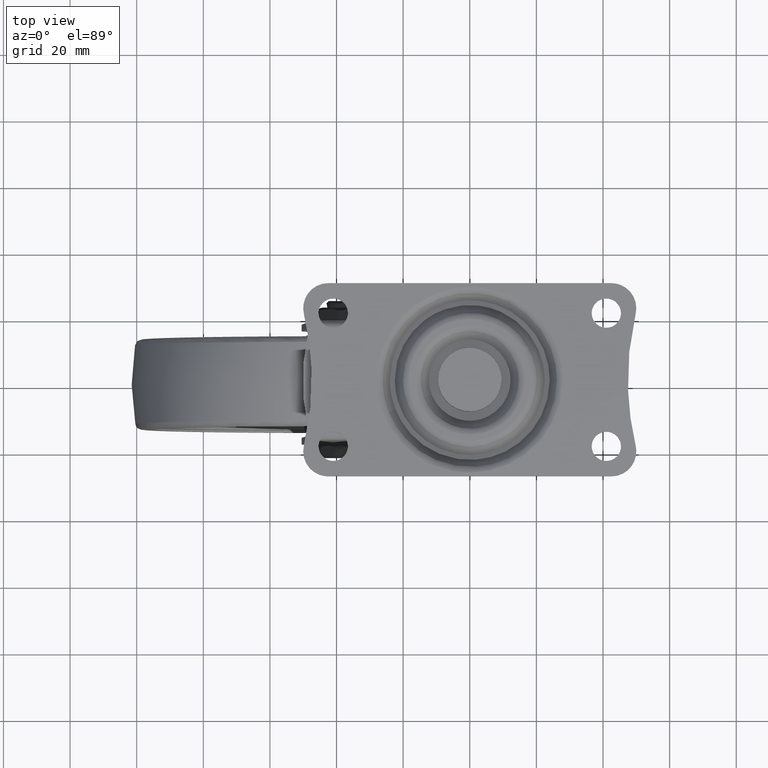
[diagram: clean part render]
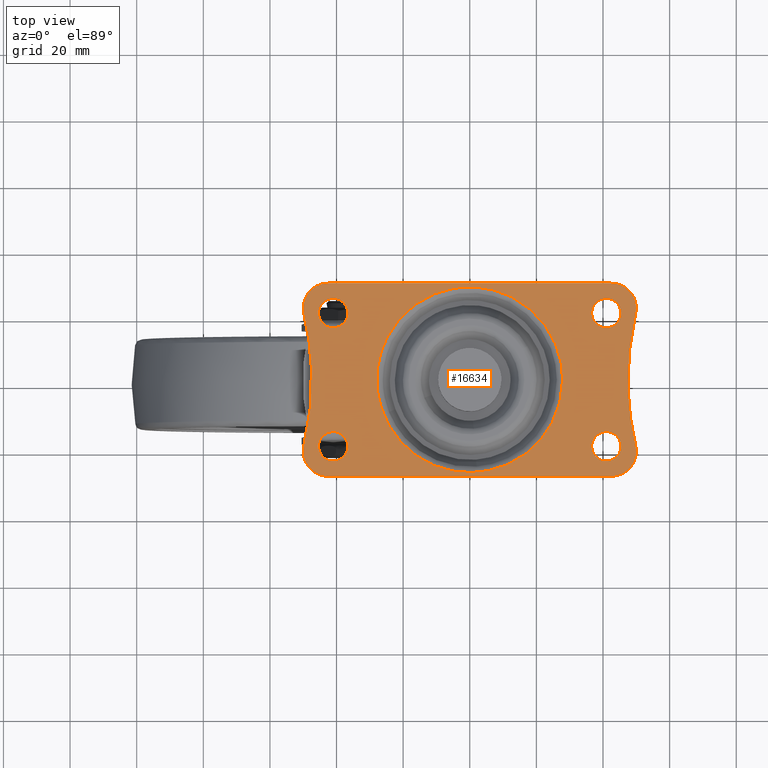
[diagram: same view with one face highlighted and labeled with its STEP entity id]
A machine part, top view. The second image highlights one B-rep face of the part: STEP entity #16634.
In plain terms, the highlighted face is a freeform B-spline surface patch.
Its self-contained STEP definition (entity closure, byte-faithful):
#10453=CARTESIAN_POINT('',(-41.519350644733478,15.630757984751259,2.0));
#10454=VERTEX_POINT('',#10453);
#10455=CARTESIAN_POINT('',(-36.599999900000000,20.0,2.0));
#10456=VERTEX_POINT('',#10455);
#10457=CARTESIAN_POINT('',(-41.519350644733485,15.630757984751254,2.000000000000000));
#10458=CARTESIAN_POINT('',(-41.260586132835790,15.599999900000000,2.0));
#10459=CARTESIAN_POINT('',(-41.0,15.599999900000000,2.0));
#10460=CARTESIAN_POINT('',(-36.599999900000000,15.599999900000011,2.0));
#10461=CARTESIAN_POINT('',(-36.599999900000000,20.0,2.0));
#10469=(BOUNDED_CURVE()B_SPLINE_CURVE(2,(#10457,#10458,#10459,#10460,#10461),.UNSPECIFIED.,.F.,.U.)B_SPLINE_CURVE_WITH_KNOTS((3,2,3),(0.229562473481581,0.250000000000000,0.500000000000000),.UNSPECIFIED.)CURVE()GEOMETRIC_REPRESENTATION_ITEM()RATIONAL_B_SPLINE_CURVE((0.956026754121121,0.976055948293740,1.0,0.707106781186547,1.0))REPRESENTATION_ITEM(''));
#10470=EDGE_CURVE('',#10454,#10456,#10469,.T.);
#10472=CARTESIAN_POINT('',(-40.731386419622680,24.391793212850182,2.0));
#10473=VERTEX_POINT('',#10472);
#10474=CARTESIAN_POINT('',(-36.599999900000000,20.0,2.0));
#10475=CARTESIAN_POINT('',(-36.599999900000007,24.139106787853052,1.999999999999999));
#10476=CARTESIAN_POINT('',(-40.731386419622680,24.391793212850168,2.000000000000000));
#10484=(BOUNDED_CURVE()B_SPLINE_CURVE(2,(#10474,#10475,#10476),.UNSPECIFIED.,.F.,.U.)B_SPLINE_CURVE_WITH_KNOTS((3,3),(0.500000000000000,0.739332962216894),.UNSPECIFIED.)CURVE()GEOMETRIC_REPRESENTATION_ITEM()RATIONAL_B_SPLINE_CURVE((1.0,0.719603993312542,0.976072041619462))REPRESENTATION_ITEM(''));
#10485=EDGE_CURVE('',#10456,#10473,#10484,.T.);
#10552=CARTESIAN_POINT('',(-45.400000100000007,20.0,2.0));
#10553=VERTEX_POINT('',#10552);
#10554=CARTESIAN_POINT('',(-45.400000100000007,20.0,2.0));
#10555=CARTESIAN_POINT('',(-45.400000100000000,16.092031997789739,2.000000000000000));
#10556=CARTESIAN_POINT('',(-41.519350644733478,15.630757984751256,2.0));
#10564=(BOUNDED_CURVE()B_SPLINE_CURVE(2,(#10554,#10555,#10556),.UNSPECIFIED.,.F.,.U.)B_SPLINE_CURVE_WITH_KNOTS((3,3),(0.0,0.229562473481581),.UNSPECIFIED.)CURVE()GEOMETRIC_REPRESENTATION_ITEM()RATIONAL_B_SPLINE_CURVE((1.0,0.731050832892808,0.956026754121120))REPRESENTATION_ITEM(''));
#10565=EDGE_CURVE('',#10553,#10454,#10564,.T.);
#10599=CARTESIAN_POINT('',(-40.731386419622673,24.391793212850175,2.000000000000000));
#10600=CARTESIAN_POINT('',(-40.865567838110948,24.400000099999996,2.000000000000000));
#10601=CARTESIAN_POINT('',(-41.0,24.400000100000000,2.0));
#10602=CARTESIAN_POINT('',(-45.400000100000014,24.400000100000007,2.0));
#10603=CARTESIAN_POINT('',(-45.400000100000007,20.0,2.0));
#10611=(BOUNDED_CURVE()B_SPLINE_CURVE(2,(#10599,#10600,#10601,#10602,#10603),.UNSPECIFIED.,.F.,.U.)B_SPLINE_CURVE_WITH_KNOTS((3,2,3),(0.739332962216895,0.750000000000000,1.0),.UNSPECIFIED.)CURVE()GEOMETRIC_REPRESENTATION_ITEM()RATIONAL_B_SPLINE_CURVE((0.976072041619464,0.987502787874006,1.0,0.707106781186547,1.0))REPRESENTATION_ITEM(''));
#10612=EDGE_CURVE('',#10473,#10553,#10611,.T.);
#10639=CARTESIAN_POINT('',(-41.519350644733478,-24.369242015248741,2.0));
#10640=VERTEX_POINT('',#10639);
#10641=CARTESIAN_POINT('',(-36.599999900000000,-20.0,2.0));
#10642=VERTEX_POINT('',#10641);
#10643=CARTESIAN_POINT('',(-41.519350644733485,-24.369242015248748,2.000000000000000));
#10644=CARTESIAN_POINT('',(-41.260586132835790,-24.400000100000000,2.0));
#10645=CARTESIAN_POINT('',(-41.0,-24.400000100000000,2.0));
#10646=CARTESIAN_POINT('',(-36.599999900000000,-24.400000100000007,2.0));
#10647=CARTESIAN_POINT('',(-36.599999900000000,-20.0,2.0));
#10655=(BOUNDED_CURVE()B_SPLINE_CURVE(2,(#10643,#10644,#10645,#10646,#10647),.UNSPECIFIED.,.F.,.U.)B_SPLINE_CURVE_WITH_KNOTS((3,2,3),(0.229562473481581,0.250000000000000,0.500000000000000),.UNSPECIFIED.)CURVE()GEOMETRIC_REPRESENTATION_ITEM()RATIONAL_B_SPLINE_CURVE((0.956026754121121,0.976055948293740,1.0,0.707106781186547,1.0))REPRESENTATION_ITEM(''));
#10656=EDGE_CURVE('',#10640,#10642,#10655,.T.);
#10658=CARTESIAN_POINT('',(-40.731386419622680,-15.608206787149820,2.0));
#10659=VERTEX_POINT('',#10658);
#10660=CARTESIAN_POINT('',(-36.599999900000000,-20.0,2.0));
#10661=CARTESIAN_POINT('',(-36.599999900000007,-15.860893212146964,1.999999999999999));
#10662=CARTESIAN_POINT('',(-40.731386419622680,-15.608206787149825,2.000000000000000));
#10670=(BOUNDED_CURVE()B_SPLINE_CURVE(2,(#10660,#10661,#10662),.UNSPECIFIED.,.F.,.U.)B_SPLINE_CURVE_WITH_KNOTS((3,3),(0.500000000000000,0.739332962216894),.UNSPECIFIED.)CURVE()GEOMETRIC_REPRESENTATION_ITEM()RATIONAL_B_SPLINE_CURVE((1.0,0.719603993312542,0.976072041619462))REPRESENTATION_ITEM(''));
#10671=EDGE_CURVE('',#10642,#10659,#10670,.T.);
#10738=CARTESIAN_POINT('',(-45.400000100000007,-20.0,2.0));
#10739=VERTEX_POINT('',#10738);
#10740=CARTESIAN_POINT('',(-45.400000100000007,-20.0,2.0));
#10741=CARTESIAN_POINT('',(-45.400000100000000,-23.907968002210268,2.000000000000000));
#10742=CARTESIAN_POINT('',(-41.519350644733478,-24.369242015248744,2.0));
#10750=(BOUNDED_CURVE()B_SPLINE_CURVE(2,(#10740,#10741,#10742),.UNSPECIFIED.,.F.,.U.)B_SPLINE_CURVE_WITH_KNOTS((3,3),(0.0,0.229562473481581),.UNSPECIFIED.)CURVE()GEOMETRIC_REPRESENTATION_ITEM()RATIONAL_B_SPLINE_CURVE((1.0,0.731050832892808,0.956026754121120))REPRESENTATION_ITEM(''));
#10751=EDGE_CURVE('',#10739,#10640,#10750,.T.);
#10785=CARTESIAN_POINT('',(-40.731386419622673,-15.608206787149818,2.000000000000000));
#10786=CARTESIAN_POINT('',(-40.865567838110948,-15.599999900000002,2.000000000000000));
#10787=CARTESIAN_POINT('',(-41.0,-15.599999900000000,2.0));
#10788=CARTESIAN_POINT('',(-45.400000100000014,-15.599999900000011,2.0));
#10789=CARTESIAN_POINT('',(-45.400000100000007,-20.0,2.0));
#10797=(BOUNDED_CURVE()B_SPLINE_CURVE(2,(#10785,#10786,#10787,#10788,#10789),.UNSPECIFIED.,.F.,.U.)B_SPLINE_CURVE_WITH_KNOTS((3,2,3),(0.739332962216895,0.750000000000000,1.0),.UNSPECIFIED.)CURVE()GEOMETRIC_REPRESENTATION_ITEM()RATIONAL_B_SPLINE_CURVE((0.976072041619464,0.987502787874006,1.0,0.707106781186547,1.0))REPRESENTATION_ITEM(''));
#10798=EDGE_CURVE('',#10659,#10739,#10797,.T.);
#10825=CARTESIAN_POINT('',(40.480649355266522,15.630757984751259,2.0));
#10826=VERTEX_POINT('',#10825);
#10827=CARTESIAN_POINT('',(45.400000100000007,20.0,2.0));
#10828=VERTEX_POINT('',#10827);
#10829=CARTESIAN_POINT('',(40.480649355266522,15.630757984751259,2.000000000000000));
#10830=CARTESIAN_POINT('',(40.739413867164217,15.599999900000007,2.000000000000000));
#10831=CARTESIAN_POINT('',(41.0,15.599999900000000,2.0));
#10832=CARTESIAN_POINT('',(45.400000100000014,15.599999900000011,2.0));
#10833=CARTESIAN_POINT('',(45.400000100000007,20.0,2.0));
#10841=(BOUNDED_CURVE()B_SPLINE_CURVE(2,(#10829,#10830,#10831,#10832,#10833),.UNSPECIFIED.,.F.,.U.)B_SPLINE_CURVE_WITH_KNOTS((3,2,3),(0.229562473481581,0.250000000000000,0.500000000000000),.UNSPECIFIED.)CURVE()GEOMETRIC_REPRESENTATION_ITEM()RATIONAL_B_SPLINE_CURVE((0.956026754121121,0.976055948293740,1.0,0.707106781186547,1.0))REPRESENTATION_ITEM(''));
#10842=EDGE_CURVE('',#10826,#10828,#10841,.T.);
#10844=CARTESIAN_POINT('',(41.268613580377320,24.391793212850182,2.0));
#10845=VERTEX_POINT('',#10844);
#10846=CARTESIAN_POINT('',(45.400000100000007,20.0,2.0));
#10847=CARTESIAN_POINT('',(45.400000100000007,24.139106787853052,1.999999999999999));
#10848=CARTESIAN_POINT('',(41.268613580377313,24.391793212850168,2.000000000000000));
#10856=(BOUNDED_CURVE()B_SPLINE_CURVE(2,(#10846,#10847,#10848),.UNSPECIFIED.,.F.,.U.)B_SPLINE_CURVE_WITH_KNOTS((3,3),(0.500000000000000,0.739332962216894),.UNSPECIFIED.)CURVE()GEOMETRIC_REPRESENTATION_ITEM()RATIONAL_B_SPLINE_CURVE((1.0,0.719603993312542,0.976072041619462))REPRESENTATION_ITEM(''));
#10857=EDGE_CURVE('',#10828,#10845,#10856,.T.);
#10924=CARTESIAN_POINT('',(36.599999900000000,20.0,2.0));
#10925=VERTEX_POINT('',#10924);
#10926=CARTESIAN_POINT('',(36.599999900000000,20.0,2.0));
#10927=CARTESIAN_POINT('',(36.599999900000000,16.092031997789736,2.000000000000000));
#10928=CARTESIAN_POINT('',(40.480649355266522,15.630757984751256,2.000000000000000));
#10936=(BOUNDED_CURVE()B_SPLINE_CURVE(2,(#10926,#10927,#10928),.UNSPECIFIED.,.F.,.U.)B_SPLINE_CURVE_WITH_KNOTS((3,3),(0.0,0.229562473481581),.UNSPECIFIED.)CURVE()GEOMETRIC_REPRESENTATION_ITEM()RATIONAL_B_SPLINE_CURVE((1.0,0.731050832892807,0.956026754121121))REPRESENTATION_ITEM(''));
#10937=EDGE_CURVE('',#10925,#10826,#10936,.T.);
#10971=CARTESIAN_POINT('',(41.268613580377327,24.391793212850175,2.000000000000000));
#10972=CARTESIAN_POINT('',(41.134432161889066,24.400000099999996,2.000000000000000));
#10973=CARTESIAN_POINT('',(41.0,24.400000100000000,2.0));
#10974=CARTESIAN_POINT('',(36.599999900000000,24.400000100000007,2.0));
#10975=CARTESIAN_POINT('',(36.599999900000000,20.0,2.0));
#10983=(BOUNDED_CURVE()B_SPLINE_CURVE(2,(#10971,#10972,#10973,#10974,#10975),.UNSPECIFIED.,.F.,.U.)B_SPLINE_CURVE_WITH_KNOTS((3,2,3),(0.739332962216895,0.750000000000000,1.0),.UNSPECIFIED.)CURVE()GEOMETRIC_REPRESENTATION_ITEM()RATIONAL_B_SPLINE_CURVE((0.976072041619464,0.987502787874006,1.0,0.707106781186547,1.0))REPRESENTATION_ITEM(''));
#10984=EDGE_CURVE('',#10845,#10925,#10983,.T.);
#11011=CARTESIAN_POINT('',(40.480649355266522,-24.369242015248741,2.0));
#11012=VERTEX_POINT('',#11011);
#11013=CARTESIAN_POINT('',(45.400000100000007,-20.0,2.0));
#11014=VERTEX_POINT('',#11013);
#11015=CARTESIAN_POINT('',(40.480649355266522,-24.369242015248741,2.000000000000000));
#11016=CARTESIAN_POINT('',(40.739413867164217,-24.400000099999996,2.000000000000000));
#11017=CARTESIAN_POINT('',(41.0,-24.400000100000000,2.0));
#11018=CARTESIAN_POINT('',(45.400000100000014,-24.400000100000007,2.0));
#11019=CARTESIAN_POINT('',(45.400000100000007,-20.0,2.0));
#11027=(BOUNDED_CURVE()B_SPLINE_CURVE(2,(#11015,#11016,#11017,#11018,#11019),.UNSPECIFIED.,.F.,.U.)B_SPLINE_CURVE_WITH_KNOTS((3,2,3),(0.229562473481581,0.250000000000000,0.500000000000000),.UNSPECIFIED.)CURVE()GEOMETRIC_REPRESENTATION_ITEM()RATIONAL_B_SPLINE_CURVE((0.956026754121121,0.976055948293740,1.0,0.707106781186547,1.0))REPRESENTATION_ITEM(''));
#11028=EDGE_CURVE('',#11012,#11014,#11027,.T.);
#11030=CARTESIAN_POINT('',(41.268613580377320,-15.608206787149820,2.0));
#11031=VERTEX_POINT('',#11030);
#11032=CARTESIAN_POINT('',(45.400000100000007,-20.0,2.0));
#11033=CARTESIAN_POINT('',(45.400000100000007,-15.860893212146964,1.999999999999999));
#11034=CARTESIAN_POINT('',(41.268613580377313,-15.608206787149825,2.000000000000000));
#11042=(BOUNDED_CURVE()B_SPLINE_CURVE(2,(#11032,#11033,#11034),.UNSPECIFIED.,.F.,.U.)B_SPLINE_CURVE_WITH_KNOTS((3,3),(0.500000000000000,0.739332962216894),.UNSPECIFIED.)CURVE()GEOMETRIC_REPRESENTATION_ITEM()RATIONAL_B_SPLINE_CURVE((1.0,0.719603993312542,0.976072041619462))REPRESENTATION_ITEM(''));
#11043=EDGE_CURVE('',#11014,#11031,#11042,.T.);
#11110=CARTESIAN_POINT('',(36.599999900000000,-20.0,2.0));
#11111=VERTEX_POINT('',#11110);
#11112=CARTESIAN_POINT('',(36.599999900000000,-20.0,2.0));
#11113=CARTESIAN_POINT('',(36.599999900000000,-23.907968002210271,2.000000000000000));
#11114=CARTESIAN_POINT('',(40.480649355266522,-24.369242015248748,2.000000000000000));
#11122=(BOUNDED_CURVE()B_SPLINE_CURVE(2,(#11112,#11113,#11114),.UNSPECIFIED.,.F.,.U.)B_SPLINE_CURVE_WITH_KNOTS((3,3),(0.0,0.229562473481581),.UNSPECIFIED.)CURVE()GEOMETRIC_REPRESENTATION_ITEM()RATIONAL_B_SPLINE_CURVE((1.0,0.731050832892807,0.956026754121121))REPRESENTATION_ITEM(''));
#11123=EDGE_CURVE('',#11111,#11012,#11122,.T.);
#11157=CARTESIAN_POINT('',(41.268613580377327,-15.608206787149818,2.000000000000000));
#11158=CARTESIAN_POINT('',(41.134432161889066,-15.599999900000002,2.000000000000000));
#11159=CARTESIAN_POINT('',(41.0,-15.599999900000000,2.0));
#11160=CARTESIAN_POINT('',(36.599999900000000,-15.599999900000011,2.0));
#11161=CARTESIAN_POINT('',(36.599999900000000,-20.0,2.0));
#11169=(BOUNDED_CURVE()B_SPLINE_CURVE(2,(#11157,#11158,#11159,#11160,#11161),.UNSPECIFIED.,.F.,.U.)B_SPLINE_CURVE_WITH_KNOTS((3,2,3),(0.739332962216895,0.750000000000000,1.0),.UNSPECIFIED.)CURVE()GEOMETRIC_REPRESENTATION_ITEM()RATIONAL_B_SPLINE_CURVE((0.976072041619464,0.987502787874006,1.0,0.707106781186547,1.0))REPRESENTATION_ITEM(''));
#11170=EDGE_CURVE('',#11031,#11111,#11169,.T.);
#15097=CARTESIAN_POINT('',(-24.928386694279091,12.504981192950510,2.0));
#15098=VERTEX_POINT('',#15097);
#15112=CARTESIAN_POINT('',(-27.889048365125149,-1.421085E-014,2.0));
#15113=VERTEX_POINT('',#15112);
#15114=CARTESIAN_POINT('',(-27.889048365125149,-1.421085E-014,2.0));
#15115=CARTESIAN_POINT('',(-27.889048365125145,6.602971632854162,2.000000000000000));
#15116=CARTESIAN_POINT('',(-24.928386694279094,12.504981192950506,1.999999999999999));
#15124=(BOUNDED_CURVE()B_SPLINE_CURVE(2,(#15114,#15115,#15116),.UNSPECIFIED.,.F.,.U.)B_SPLINE_CURVE_WITH_KNOTS((3,3),(0.0,0.076230937890650),.UNSPECIFIED.)CURVE()GEOMETRIC_REPRESENTATION_ITEM()RATIONAL_B_SPLINE_CURVE((1.0,0.910689900912157,0.875845342756899))REPRESENTATION_ITEM(''));
#15125=EDGE_CURVE('',#15113,#15098,#15124,.T.);
#15127=CARTESIAN_POINT('',(27.889048365125149,-1.421085E-014,2.0));
#15128=VERTEX_POINT('',#15127);
#15129=CARTESIAN_POINT('',(27.889048365125149,-1.421085E-014,2.0));
#15130=CARTESIAN_POINT('',(27.889048365125145,-27.889048365125159,2.000000000000000));
#15131=CARTESIAN_POINT('',(0.0,-27.889048365125159,2.0));
#15132=CARTESIAN_POINT('',(-27.889048365125145,-27.889048365125159,2.000000000000000));
#15133=CARTESIAN_POINT('',(-27.889048365125149,-1.421085E-014,2.0));
#15141=(BOUNDED_CURVE()B_SPLINE_CURVE(2,(#15129,#15130,#15131,#15132,#15133),.UNSPECIFIED.,.F.,.U.)B_SPLINE_CURVE_WITH_KNOTS((3,2,3),(0.500000000000000,0.750000000000000,1.0),.UNSPECIFIED.)CURVE()GEOMETRIC_REPRESENTATION_ITEM()RATIONAL_B_SPLINE_CURVE((1.0,0.707106781186548,1.0,0.707106781186548,1.0))REPRESENTATION_ITEM(''));
#15142=EDGE_CURVE('',#15128,#15113,#15141,.T.);
#15144=CARTESIAN_POINT('',(12.504981192950520,24.928386694279080,2.0));
#15145=VERTEX_POINT('',#15144);
#15146=CARTESIAN_POINT('',(12.504981192950526,24.928386694279077,2.000000000000000));
#15147=CARTESIAN_POINT('',(27.889048365125152,17.211181703038793,2.000000000000000));
#15148=CARTESIAN_POINT('',(27.889048365125149,-1.421085E-014,2.0));
#15156=(BOUNDED_CURVE()B_SPLINE_CURVE(2,(#15146,#15147,#15148),.UNSPECIFIED.,.F.,.U.)B_SPLINE_CURVE_WITH_KNOTS((3,3),(0.326230937890650,0.500000000000000),.UNSPECIFIED.)CURVE()GEOMETRIC_REPRESENTATION_ITEM()RATIONAL_B_SPLINE_CURVE((0.875845342756899,0.796416880274391,1.0))REPRESENTATION_ITEM(''));
#15157=EDGE_CURVE('',#15145,#15128,#15156,.T.);
#15194=CARTESIAN_POINT('',(-24.928386694279087,12.504981192950504,2.000000000000000));
#15195=CARTESIAN_POINT('',(-17.211181703038804,27.889048365125138,2.000000000000000));
#15196=CARTESIAN_POINT('',(0.0,27.889048365125131,2.0));
#15197=CARTESIAN_POINT('',(6.602971632854190,27.889048365125138,2.000000000000000));
#15198=CARTESIAN_POINT('',(12.504981192950517,24.928386694279080,1.999999999999999));
#15206=(BOUNDED_CURVE()B_SPLINE_CURVE(2,(#15194,#15195,#15196,#15197,#15198),.UNSPECIFIED.,.F.,.U.)B_SPLINE_CURVE_WITH_KNOTS((3,2,3),(0.076230937890650,0.250000000000000,0.326230937890650),.UNSPECIFIED.)CURVE()GEOMETRIC_REPRESENTATION_ITEM()RATIONAL_B_SPLINE_CURVE((0.875845342756899,0.796416880274391,1.0,0.910689900912157,0.875845342756899))REPRESENTATION_ITEM(''));
#15207=EDGE_CURVE('',#15098,#15145,#15206,.T.);
#16485=CARTESIAN_POINT('',(-54.994845677651313,31.897100037434750,2.0));
#16486=CARTESIAN_POINT('',(54.994854371239100,31.897100037434750,2.0));
#16487=CARTESIAN_POINT('',(-54.994845677651313,-31.897104593116051,2.0));
#16488=CARTESIAN_POINT('',(54.994854371239100,-31.897104593116051,2.0));
#16489=B_SPLINE_SURFACE_WITH_KNOTS('',1,1,((#16485,#16487),(#16486,#16488)),.UNSPECIFIED.,.F.,.F.,.U.,(2,2),(2,2),(0.0,109.989700048890400),(0.0,63.794204630550801),.UNSPECIFIED.);
#16490=CARTESIAN_POINT('',(-49.794594143545098,-19.756756964460099,2.0));
#16491=VERTEX_POINT('',#16490);
#16492=CARTESIAN_POINT('',(-49.794595056304097,19.756760783900798,2.0));
#16493=VERTEX_POINT('',#16492);
#16494=CARTESIAN_POINT('',(-49.794594143545098,-19.756756964460099,2.0));
#16495=CARTESIAN_POINT('',(-45.073173843628034,0.000002018784792,2.000000000000000));
#16496=CARTESIAN_POINT('',(-49.794595056304097,19.756760783900798,2.0));
#16504=(BOUNDED_CURVE()B_SPLINE_CURVE(2,(#16494,#16495,#16496),.UNSPECIFIED.,.F.,.U.)CURVE()GEOMETRIC_REPRESENTATION_ITEM()QUASI_UNIFORM_CURVE()RATIONAL_B_SPLINE_CURVE((1.0,0.972612539271141,1.0))REPRESENTATION_ITEM(''));
#16505=EDGE_CURVE('',#16491,#16493,#16504,.T.);
#16506=ORIENTED_EDGE('',*,*,#16505,.F.);
#16507=CARTESIAN_POINT('',(-42.500000000000000,-29.000003000000000,2.0));
#16508=VERTEX_POINT('',#16507);
#16509=CARTESIAN_POINT('',(-49.794594143545098,-19.756756964460099,2.0));
#16510=CARTESIAN_POINT('',(-50.639567033353252,-23.292543523214487,2.000000000000000));
#16511=CARTESIAN_POINT('',(-48.387457972951893,-26.146272974712321,2.0));
#16512=CARTESIAN_POINT('',(-46.135348912550555,-29.000002426210159,2.000000000000000));
#16513=CARTESIAN_POINT('',(-42.500000000000000,-29.000003000000000,2.0));
#16521=(BOUNDED_CURVE()B_SPLINE_CURVE(2,(#16509,#16510,#16511,#16512,#16513),.UNSPECIFIED.,.F.,.U.)B_SPLINE_CURVE_WITH_KNOTS((3,2,3),(0.0,0.500000000000000,1.0),.UNSPECIFIED.)CURVE()GEOMETRIC_REPRESENTATION_ITEM()RATIONAL_B_SPLINE_CURVE((1.0,0.899861895874855,1.0,0.899861895874855,1.0))REPRESENTATION_ITEM(''));
#16522=EDGE_CURVE('',#16491,#16508,#16521,.T.);
#16523=ORIENTED_EDGE('',*,*,#16522,.T.);
#16524=CARTESIAN_POINT('',(42.500002617993950,-28.999999999999549,2.0));
#16525=VERTEX_POINT('',#16524);
#16526=CARTESIAN_POINT('',(42.500002617993950,-28.999999999999549,2.0));
#16527=CARTESIAN_POINT('',(-42.500000000000000,-29.000003000000000,2.0));
#16528=QUASI_UNIFORM_CURVE('',1,(#16526,#16527),.UNSPECIFIED.,.F.,.U.);
#16529=EDGE_CURVE('',#16525,#16508,#16528,.T.);
#16530=ORIENTED_EDGE('',*,*,#16529,.F.);
#16531=CARTESIAN_POINT('',(49.794594135559400,-19.756756931044251,2.0));
#16532=VERTEX_POINT('',#16531);
#16533=CARTESIAN_POINT('',(42.500002617993950,-28.999999999999542,2.0));
#16534=CARTESIAN_POINT('',(46.135350732880646,-28.999998731023634,2.000000000000000));
#16535=CARTESIAN_POINT('',(48.387458794521230,-26.146270433672012,2.0));
#16536=CARTESIAN_POINT('',(50.639566856161807,-23.292542136320385,2.000000000000000));
#16537=CARTESIAN_POINT('',(49.794594135559407,-19.756756931044251,2.0));
#16545=(BOUNDED_CURVE()B_SPLINE_CURVE(2,(#16533,#16534,#16535,#16536,#16537),.UNSPECIFIED.,.F.,.U.)B_SPLINE_CURVE_WITH_KNOTS((3,2,3),(0.0,0.500000000000000,1.0),.UNSPECIFIED.)CURVE()GEOMETRIC_REPRESENTATION_ITEM()RATIONAL_B_SPLINE_CURVE((1.0,0.899861933438776,1.0,0.899861933438776,1.0))REPRESENTATION_ITEM(''));
#16546=EDGE_CURVE('',#16525,#16532,#16545,.T.);
#16547=ORIENTED_EDGE('',*,*,#16546,.T.);
#16548=CARTESIAN_POINT('',(49.794603130326699,19.756754781498149,2.0));
#16549=VERTEX_POINT('',#16548);
#16550=CARTESIAN_POINT('',(49.794603130326699,19.756754781498149,2.0));
#16551=CARTESIAN_POINT('',(45.073180936787274,-0.000001074773045,2.000000000000000));
#16552=CARTESIAN_POINT('',(49.794594135559400,-19.756756931044251,2.0));
#16560=(BOUNDED_CURVE()B_SPLINE_CURVE(2,(#16550,#16551,#16552),.UNSPECIFIED.,.F.,.U.)CURVE()GEOMETRIC_REPRESENTATION_ITEM()QUASI_UNIFORM_CURVE()RATIONAL_B_SPLINE_CURVE((1.0,0.972612551407922,1.0))REPRESENTATION_ITEM(''));
#16561=EDGE_CURVE('',#16549,#16532,#16560,.T.);
#16562=ORIENTED_EDGE('',*,*,#16561,.F.);
#16563=CARTESIAN_POINT('',(42.500000000000000,29.0,2.0));
#16564=VERTEX_POINT('',#16563);
#16565=CARTESIAN_POINT('',(49.794603130326699,19.756754781498149,2.0));
#16566=CARTESIAN_POINT('',(50.639574318428778,23.292541184037880,2.000000000000000));
#16567=CARTESIAN_POINT('',(48.387462480977618,26.146270386454329,2.0));
#16568=CARTESIAN_POINT('',(46.135350643526472,28.999999588870775,2.000000000000000));
#16569=CARTESIAN_POINT('',(42.500000000000000,29.0,2.0));
#16577=(BOUNDED_CURVE()B_SPLINE_CURVE(2,(#16565,#16566,#16567,#16568,#16569),.UNSPECIFIED.,.F.,.U.)B_SPLINE_CURVE_WITH_KNOTS((3,2,3),(0.0,0.500000000000000,1.0),.UNSPECIFIED.)CURVE()GEOMETRIC_REPRESENTATION_ITEM()RATIONAL_B_SPLINE_CURVE((1.0,0.899861895375334,1.0,0.899861895375334,1.0))REPRESENTATION_ITEM(''));
#16578=EDGE_CURVE('',#16549,#16564,#16577,.T.);
#16579=ORIENTED_EDGE('',*,*,#16578,.T.);
#16580=CARTESIAN_POINT('',(-42.499997643805600,28.999999999999499,2.0));
#16581=VERTEX_POINT('',#16580);
#16582=CARTESIAN_POINT('',(-42.499997643805600,28.999999999999499,2.0));
#16583=CARTESIAN_POINT('',(42.500000000000000,29.0,2.0));
#16584=QUASI_UNIFORM_CURVE('',1,(#16582,#16583),.UNSPECIFIED.,.F.,.U.);
#16585=EDGE_CURVE('',#16581,#16564,#16584,.T.);
#16586=ORIENTED_EDGE('',*,*,#16585,.F.);
#16587=CARTESIAN_POINT('',(-42.499997643805600,28.999999999999631,2.0));
#16588=CARTESIAN_POINT('',(-46.135346071393464,29.000001142077984,2.0));
#16589=CARTESIAN_POINT('',(-48.387456026725772,26.146273940844480,2.0));
#16590=CARTESIAN_POINT('',(-50.639565982058080,23.292546739610987,2.0));
#16591=CARTESIAN_POINT('',(-49.794595056303962,19.756760783900841,2.0));
#16599=(BOUNDED_CURVE()B_SPLINE_CURVE(2,(#16587,#16588,#16589,#16590,#16591),.UNSPECIFIED.,.F.,.U.)B_SPLINE_CURVE_WITH_KNOTS((3,2,3),(0.0,0.500000000000000,1.0),.UNSPECIFIED.)CURVE()GEOMETRIC_REPRESENTATION_ITEM()RATIONAL_B_SPLINE_CURVE((1.0,0.899861918712920,1.0,0.899861918712920,1.0))REPRESENTATION_ITEM(''));
#16600=EDGE_CURVE('',#16581,#16493,#16599,.T.);
#16601=ORIENTED_EDGE('',*,*,#16600,.T.);
#16602=EDGE_LOOP('',(#16506,#16523,#16530,#16547,#16562,#16579,#16586,#16601));
#16603=FACE_OUTER_BOUND('',#16602,.T.);
#16604=ORIENTED_EDGE('',*,*,#15142,.T.);
#16605=ORIENTED_EDGE('',*,*,#15125,.T.);
#16606=ORIENTED_EDGE('',*,*,#15207,.T.);
#16607=ORIENTED_EDGE('',*,*,#15157,.T.);
#16608=EDGE_LOOP('',(#16604,#16605,#16606,#16607));
#16609=FACE_BOUND('',#16608,.T.);
#16610=ORIENTED_EDGE('',*,*,#11043,.F.);
#16611=ORIENTED_EDGE('',*,*,#11028,.F.);
#16612=ORIENTED_EDGE('',*,*,#11123,.F.);
#16613=ORIENTED_EDGE('',*,*,#11170,.F.);
#16614=EDGE_LOOP('',(#16610,#16611,#16612,#16613));
#16615=FACE_BOUND('',#16614,.T.);
#16616=ORIENTED_EDGE('',*,*,#10857,.F.);
#16617=ORIENTED_EDGE('',*,*,#10842,.F.);
#16618=ORIENTED_EDGE('',*,*,#10937,.F.);
#16619=ORIENTED_EDGE('',*,*,#10984,.F.);
#16620=EDGE_LOOP('',(#16616,#16617,#16618,#16619));
#16621=FACE_BOUND('',#16620,.T.);
#16622=ORIENTED_EDGE('',*,*,#10671,.F.);
#16623=ORIENTED_EDGE('',*,*,#10656,.F.);
#16624=ORIENTED_EDGE('',*,*,#10751,.F.);
#16625=ORIENTED_EDGE('',*,*,#10798,.F.);
#16626=EDGE_LOOP('',(#16622,#16623,#16624,#16625));
#16627=FACE_BOUND('',#16626,.T.);
#16628=ORIENTED_EDGE('',*,*,#10485,.F.);
#16629=ORIENTED_EDGE('',*,*,#10470,.F.);
#16630=ORIENTED_EDGE('',*,*,#10565,.F.);
#16631=ORIENTED_EDGE('',*,*,#10612,.F.);
#16632=EDGE_LOOP('',(#16628,#16629,#16630,#16631));
#16633=FACE_BOUND('',#16632,.T.);
#16634=ADVANCED_FACE('',(#16603,#16609,#16615,#16621,#16627,#16633),#16489,.F.);